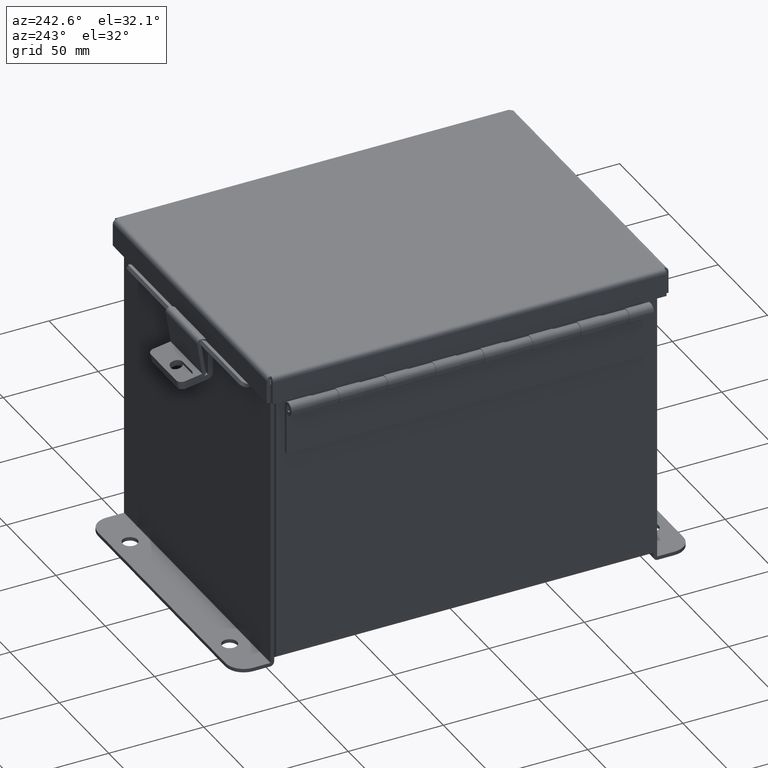
[diagram: clean part render]
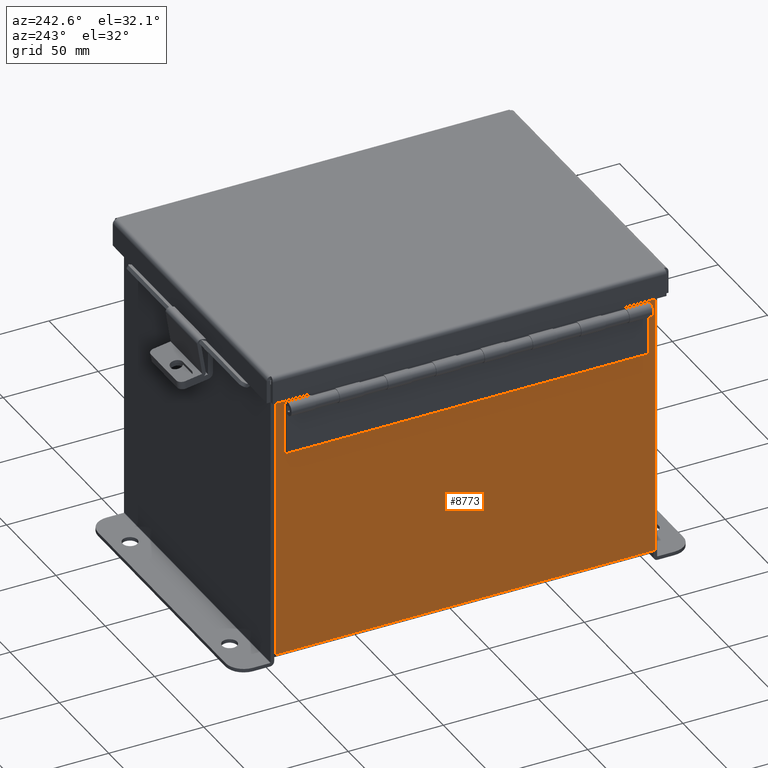
[diagram: same view with one face highlighted and labeled with its STEP entity id]
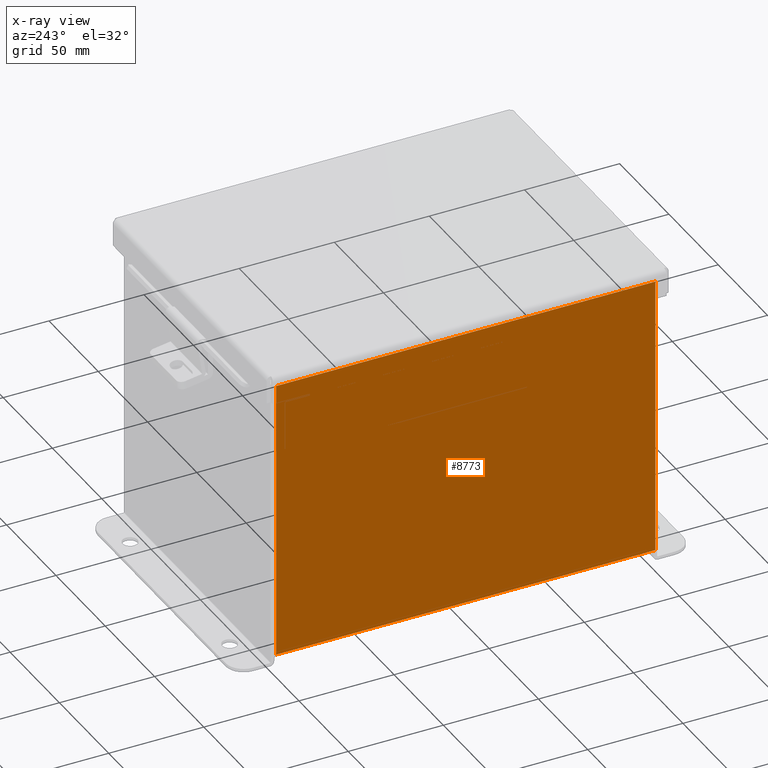
[diagram: x-ray of the same camera — body ghosted, the highlighted face saturated]
A machine part, auxiliary view. The second image highlights one B-rep face of the part: STEP entity #8773.
The next image is the same camera in x-ray: the body ghosted, the highlighted face saturated — about 0% of this face is hidden behind the body in this view.
In plain terms, the highlighted planar face has unit normal (1, 0, 0).
Its self-contained STEP definition (entity closure, byte-faithful):
#1319 = VECTOR ( 'NONE', #11607, 39.37007874015748100 ) ;
#1819 = VERTEX_POINT ( 'NONE', #13586 ) ;
#2366 = ORIENTED_EDGE ( 'NONE', *, *, #4115, .T. ) ;
#2580 = CARTESIAN_POINT ( 'NONE',  ( -3.000000000000018700, -3.925299999999998200, 5.837600000000000100 ) ) ;
#2786 = ORIENTED_EDGE ( 'NONE', *, *, #13975, .T. ) ;
#3228 = CARTESIAN_POINT ( 'NONE',  ( -2.999999999999999600, -3.925299999999999100, 0.01299999999999929700 ) ) ;
#3618 = CARTESIAN_POINT ( 'NONE',  ( -2.999999999999999600, 3.925300000000000500, 0.01299999999999989400 ) ) ;
#3703 = LINE ( 'NONE', #12340, #7237 ) ;
#4110 = LINE ( 'NONE', #4456, #1319 ) ;
#4115 = EDGE_CURVE ( 'NONE', #1819, #8611, #3703, .T. ) ;
#4456 = CARTESIAN_POINT ( 'NONE',  ( -3.000000000000018700, -3.925299999999998200, 5.837600000000000100 ) ) ;
#4931 = ORIENTED_EDGE ( 'NONE', *, *, #8969, .T. ) ;
#4944 = VECTOR ( 'NONE', #8382, 39.37007874015748100 ) ;
#5130 = PLANE ( 'NONE',  #15138 ) ;
#6782 = CARTESIAN_POINT ( 'NONE',  ( -2.999999999999999600, -3.925299999999999100, -9.894411952052753600E-015 ) ) ;
#7237 = VECTOR ( 'NONE', #11296, 39.37007874015748100 ) ;
#7497 = DIRECTION ( 'NONE',  ( 3.455316574900958600E-015, 0.0000000000000000000, -1.000000000000000000 ) ) ;
#7947 = DIRECTION ( 'NONE',  ( -3.455316574900958600E-015, 1.867738689135653700E-016, 1.000000000000000000 ) ) ;
#8382 = DIRECTION ( 'NONE',  ( -2.404758783435166500E-031, 1.000000000000000000, 6.959590333641412800E-017 ) ) ;
#8611 = VERTEX_POINT ( 'NONE', #3618 ) ;
#8773 = ADVANCED_FACE ( 'NONE', ( #9868 ), #5130, .F. ) ;
#8798 = VECTOR ( 'NONE', #7947, 39.37007874015748100 ) ;
#8969 = EDGE_CURVE ( 'NONE', #14207, #1819, #4110, .T. ) ;
#9868 = FACE_OUTER_BOUND ( 'NONE', #14159, .T. ) ;
#11235 = LINE ( 'NONE', #13118, #4944 ) ;
#11296 = DIRECTION ( 'NONE',  ( 3.455316574900958600E-015, 0.0000000000000000000, -1.000000000000000000 ) ) ;
#11607 = DIRECTION ( 'NONE',  ( 0.0000000000000000000, 1.000000000000000000, 0.0000000000000000000 ) ) ;
#12340 = CARTESIAN_POINT ( 'NONE',  ( -2.999999999999999600, 3.925300000000000500, -1.062859610035002400E-014 ) ) ;
#13118 = CARTESIAN_POINT ( 'NONE',  ( -2.999999999999999600, 3.925300000000000500, 0.01299999999999984300 ) ) ;
#13289 = VERTEX_POINT ( 'NONE', #3228 ) ;
#13423 = CARTESIAN_POINT ( 'NONE',  ( -2.999999999999999600, 0.0000000000000000000, -1.062859610035002400E-014 ) ) ;
#13505 = EDGE_CURVE ( 'NONE', #13289, #8611, #11235, .T. ) ;
#13586 = CARTESIAN_POINT ( 'NONE',  ( -3.000000000000020000, 3.925300000000000500, 5.837600000000000100 ) ) ;
#13975 = EDGE_CURVE ( 'NONE', #13289, #14207, #15113, .T. ) ;
#14159 = EDGE_LOOP ( 'NONE', ( #4931, #2366, #14183, #2786 ) ) ;
#14183 = ORIENTED_EDGE ( 'NONE', *, *, #13505, .F. ) ;
#14207 = VERTEX_POINT ( 'NONE', #2580 ) ;
#14609 = DIRECTION ( 'NONE',  ( 1.000000000000000000, 0.0000000000000000000, 3.455316574900958600E-015 ) ) ;
#15113 = LINE ( 'NONE', #6782, #8798 ) ;
#15138 = AXIS2_PLACEMENT_3D ( 'NONE', #13423, #14609, #7497 ) ;